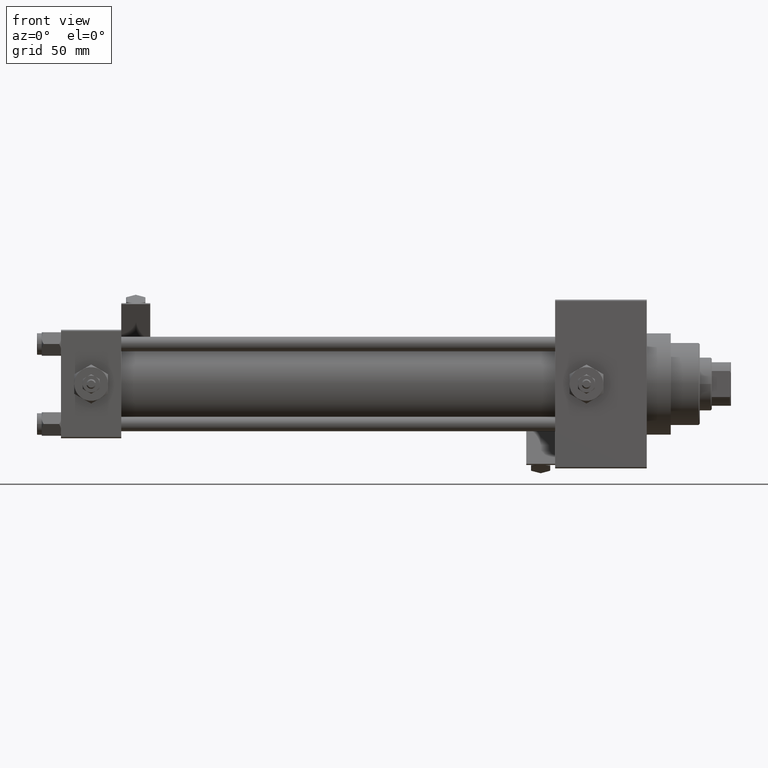
[diagram: clean part render]
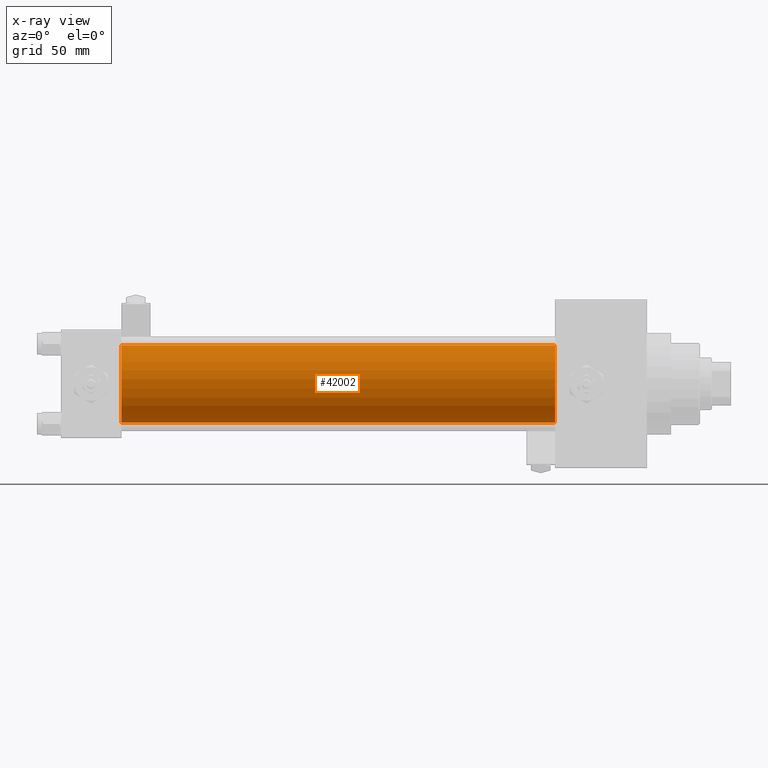
[diagram: x-ray — body ghosted, one internal face saturated and labeled with its STEP entity id]
A machine part, front view, then the same camera in x-ray: the body is ghosted and one INTERNAL B-rep face — a face not visible from any outside direction — is saturated and labeled: STEP entity #42002.
In plain terms, the highlighted cylindrical surface (partial cylindrical patch) has radius 16 mm, axis along (-1, -0, -0).
Its self-contained STEP definition (entity closure, byte-faithful):
#440 = CARTESIAN_POINT ( 'NONE',  ( 25.00000000000000000, -2.602085213965210642E-15, 0.000000000000000000 ) ) ;
#688 = EDGE_LOOP ( 'NONE', ( #30244, #35030, #7092, #881 ) ) ;
#881 = ORIENTED_EDGE ( 'NONE', *, *, #5487, .F. ) ;
#1532 = DIRECTION ( 'NONE',  ( 0.000000000000000000, 0.000000000000000000, 1.000000000000000000 ) ) ;
#2837 = CARTESIAN_POINT ( 'NONE',  ( 205.0000000000000000, -2.602085213965210642E-15, 16.00000000000000000 ) ) ;
#3237 = VERTEX_POINT ( 'NONE', #37468 ) ;
#3426 = VERTEX_POINT ( 'NONE', #18135 ) ;
#5487 = EDGE_CURVE ( 'NONE', #40684, #3426, #44725, .T. ) ;
#5947 = DIRECTION ( 'NONE',  ( -1.000000000000000000, -0.000000000000000000, -0.000000000000000000 ) ) ;
#7092 = ORIENTED_EDGE ( 'NONE', *, *, #44285, .F. ) ;
#8877 = DIRECTION ( 'NONE',  ( -1.000000000000000000, -0.000000000000000000, -0.000000000000000000 ) ) ;
#8974 = DIRECTION ( 'NONE',  ( 1.000000000000000000, 0.000000000000000000, 0.000000000000000000 ) ) ;
#12690 = FACE_OUTER_BOUND ( 'NONE', #688, .T. ) ;
#14961 = CIRCLE ( 'NONE', #44094, 16.00000000000000000 ) ;
#17162 = CARTESIAN_POINT ( 'NONE',  ( 205.0000000000000000, -6.426503353294460032E-16, -16.00000000000000000 ) ) ;
#17655 = DIRECTION ( 'NONE',  ( -1.000000000000000000, -0.000000000000000000, -0.000000000000000000 ) ) ;
#18135 = CARTESIAN_POINT ( 'NONE',  ( 25.00000000000000000, -2.602085213965210642E-15, 16.00000000000000000 ) ) ;
#18812 = CARTESIAN_POINT ( 'NONE',  ( 205.0000000000000000, -6.426503353294460032E-16, -16.00000000000000000 ) ) ;
#19434 = DIRECTION ( 'NONE',  ( 0.000000000000000000, 0.000000000000000000, -1.000000000000000000 ) ) ;
#20107 = CIRCLE ( 'NONE', #31444, 16.00000000000000000 ) ;
#24734 = VECTOR ( 'NONE', #17655, 1000.000000000000000 ) ;
#25274 = VECTOR ( 'NONE', #5947, 1000.000000000000000 ) ;
#25601 = EDGE_CURVE ( 'NONE', #40684, #43937, #14961, .T. ) ;
#27477 = EDGE_CURVE ( 'NONE', #43937, #3237, #36181, .T. ) ;
#27985 = DIRECTION ( 'NONE',  ( 0.000000000000000000, 0.000000000000000000, -1.000000000000000000 ) ) ;
#28142 = CARTESIAN_POINT ( 'NONE',  ( 205.0000000000000000, -2.602085213965210642E-15, 0.000000000000000000 ) ) ;
#28490 = CARTESIAN_POINT ( 'NONE',  ( 205.0000000000000000, -2.602085213965210642E-15, 0.000000000000000000 ) ) ;
#30244 = ORIENTED_EDGE ( 'NONE', *, *, #25601, .T. ) ;
#31444 = AXIS2_PLACEMENT_3D ( 'NONE', #440, #38959, #19434 ) ;
#32994 = AXIS2_PLACEMENT_3D ( 'NONE', #28142, #8877, #1532 ) ;
#35030 = ORIENTED_EDGE ( 'NONE', *, *, #27477, .T. ) ;
#36181 = LINE ( 'NONE', #17162, #24734 ) ;
#37468 = CARTESIAN_POINT ( 'NONE',  ( 25.00000000000000000, -6.426503353294460032E-16, -16.00000000000000000 ) ) ;
#38959 = DIRECTION ( 'NONE',  ( 1.000000000000000000, 0.000000000000000000, 0.000000000000000000 ) ) ;
#40408 = CARTESIAN_POINT ( 'NONE',  ( 205.0000000000000000, -2.602085213965210642E-15, 16.00000000000000000 ) ) ;
#40684 = VERTEX_POINT ( 'NONE', #2837 ) ;
#42002 = ADVANCED_FACE ( 'NONE', ( #12690 ), #43870, .F. ) ;
#43870 = CYLINDRICAL_SURFACE ( 'NONE', #32994, 16.00000000000000000 ) ;
#43937 = VERTEX_POINT ( 'NONE', #18812 ) ;
#44094 = AXIS2_PLACEMENT_3D ( 'NONE', #28490, #8974, #27985 ) ;
#44285 = EDGE_CURVE ( 'NONE', #3426, #3237, #20107, .T. ) ;
#44725 = LINE ( 'NONE', #40408, #25274 ) ;